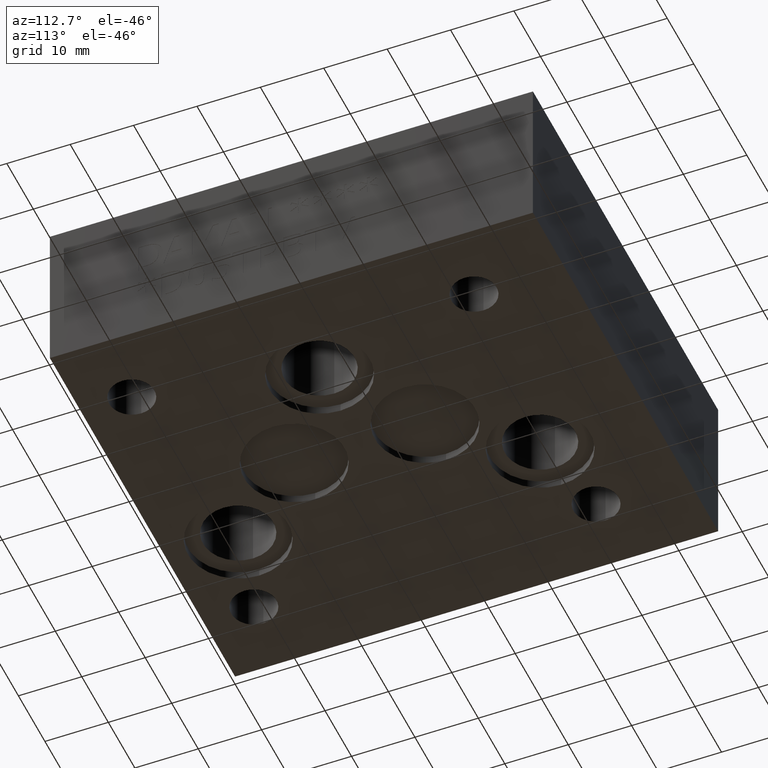
[diagram: clean part render]
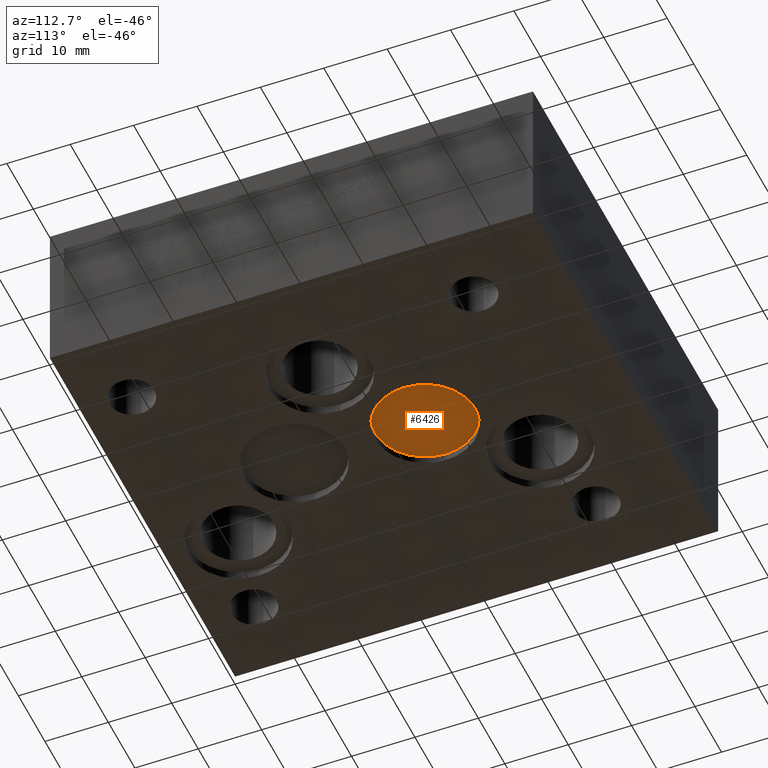
[diagram: same view with one face highlighted and labeled with its STEP entity id]
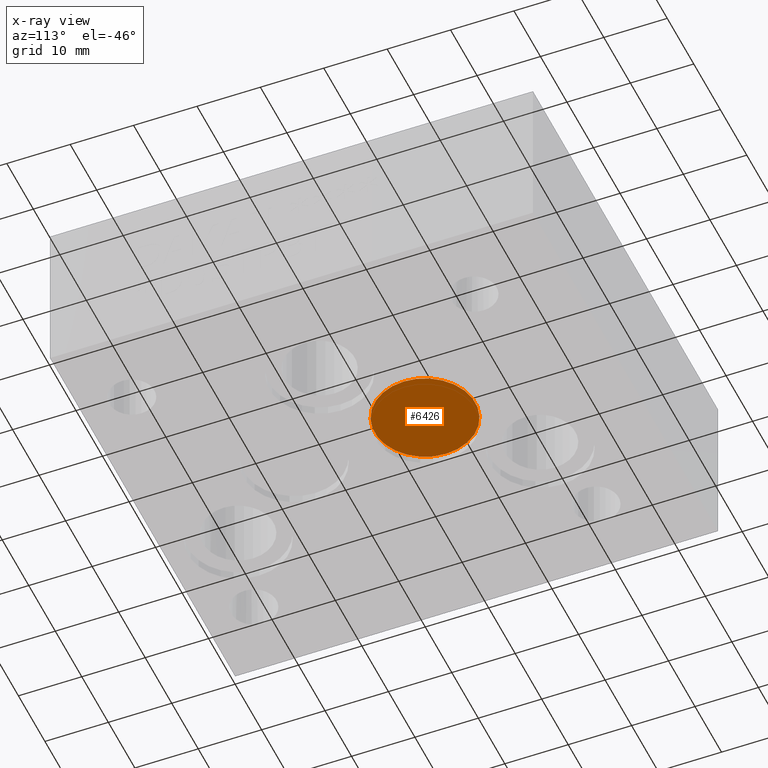
[diagram: x-ray of the same camera — body ghosted, the highlighted face saturated]
A machine part, auxiliary view. The second image highlights one B-rep face of the part: STEP entity #6426.
The next image is the same camera in x-ray: the body ghosted, the highlighted face saturated — about 0% of this face is hidden behind the body in this view.
In plain terms, the highlighted planar face has unit normal (0, 0, -1).
Its self-contained STEP definition (entity closure, byte-faithful):
#25=CIRCLE('',#6698,7.9375);
#26=CIRCLE('',#6699,7.9375);
#630=FACE_OUTER_BOUND('',#974,.T.);
#974=EDGE_LOOP('',(#5423,#5424));
#2916=VERTEX_POINT('',#10518);
#2917=VERTEX_POINT('',#10520);
#3770=EDGE_CURVE('',#2917,#2916,#25,.T.);
#3771=EDGE_CURVE('',#2916,#2917,#26,.T.);
#5423=ORIENTED_EDGE('',*,*,#3770,.T.);
#5424=ORIENTED_EDGE('',*,*,#3771,.T.);
#5857=PLANE('',#6700);
#6426=ADVANCED_FACE('',(#630),#5857,.T.);
#6698=AXIS2_PLACEMENT_3D('',#10521,#7891,#7892);
#6699=AXIS2_PLACEMENT_3D('',#10522,#7893,#7894);
#6700=AXIS2_PLACEMENT_3D('',#10523,#7895,#7896);
#7891=DIRECTION('center_axis',(0.,0.,-1.));
#7892=DIRECTION('ref_axis',(1.,0.,0.));
#7893=DIRECTION('center_axis',(0.,0.,-1.));
#7894=DIRECTION('ref_axis',(1.,0.,0.));
#7895=DIRECTION('center_axis',(0.,0.,-1.));
#7896=DIRECTION('ref_axis',(1.,0.,0.));
#10518=CARTESIAN_POINT('',(28.5877,45.2374,1.27));
#10520=CARTESIAN_POINT('',(44.4627,45.2374,1.27));
#10521=CARTESIAN_POINT('Origin',(36.5252,45.2374,1.27));
#10522=CARTESIAN_POINT('Origin',(36.5252,45.2374,1.27));
#10523=CARTESIAN_POINT('Origin',(36.5252,45.2374,1.27));